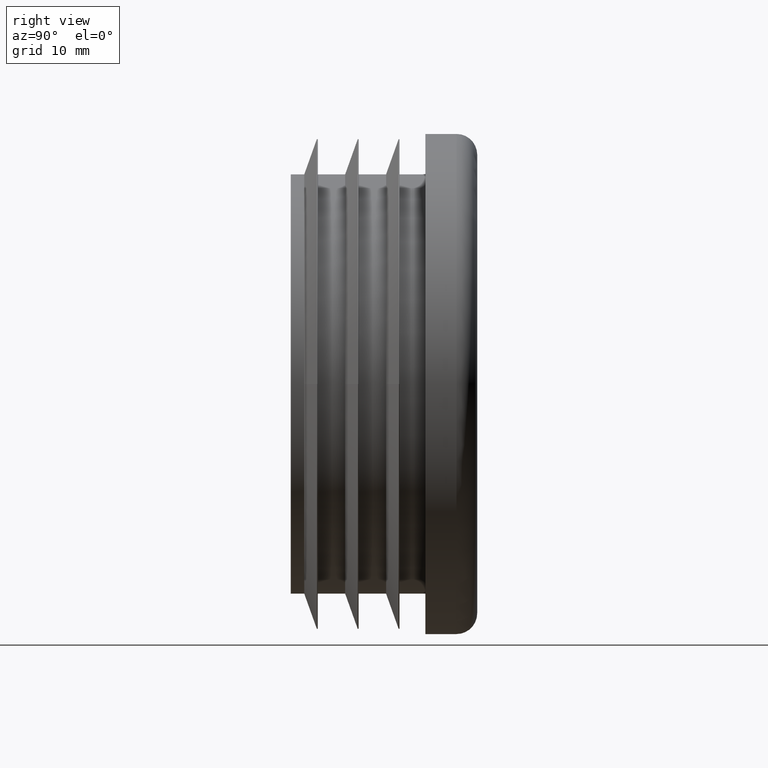
[diagram: clean part render]
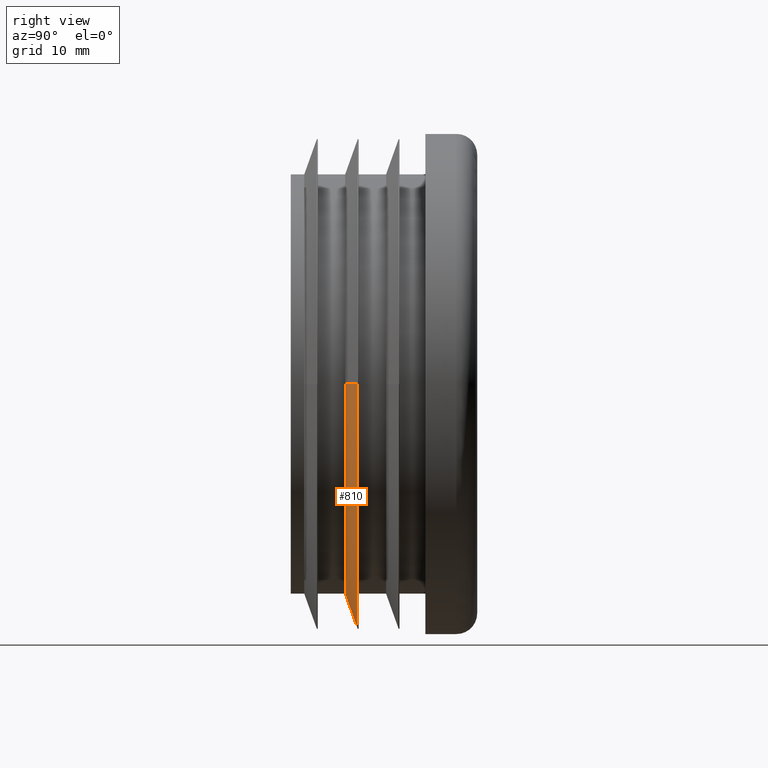
[diagram: same view with one face highlighted and labeled with its STEP entity id]
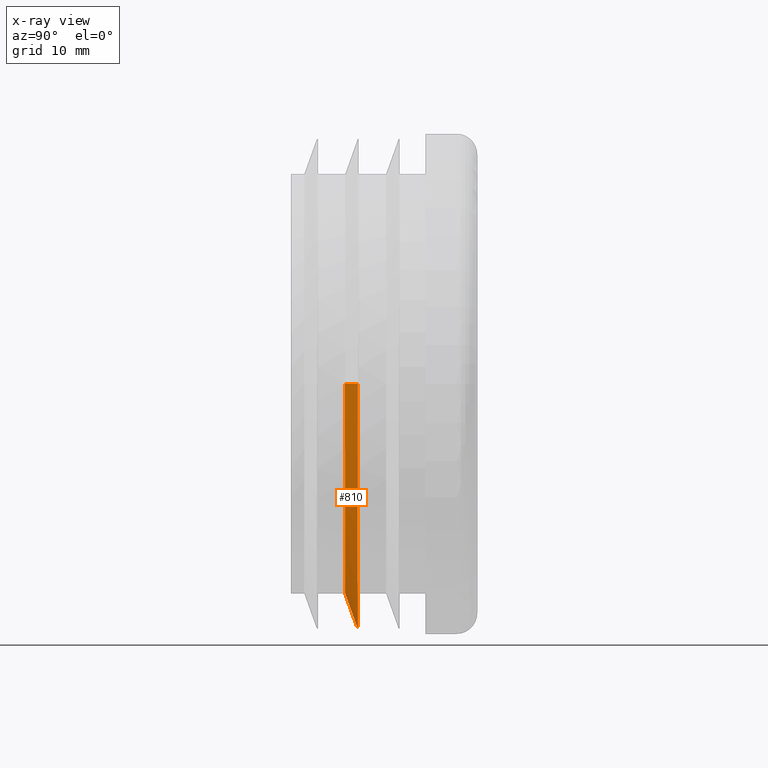
[diagram: x-ray of the same camera — body ghosted, the highlighted face saturated]
A machine part, right view. The second image highlights one B-rep face of the part: STEP entity #810.
The next image is the same camera in x-ray: the body ghosted, the highlighted face saturated — about 0% of this face is hidden behind the body in this view.
In plain terms, the highlighted conical surface has half-angle 70.339 deg.
Its self-contained STEP definition (entity closure, byte-faithful):
#339 = AXIS2_PLACEMENT_3D ( 'NONE', #545, #4333, #6259 ) ;
#545 = CARTESIAN_POINT ( 'NONE',  ( -5.499083108677953652E-14, 5.250000000000017764, 0.000000000000000000 ) ) ;
#696 = EDGE_CURVE ( 'NONE', #11038, #10031, #1100, .T. ) ;
#810 = ADVANCED_FACE ( 'NONE', ( #7838 ), #5240, .T. ) ;
#1100 = CIRCLE ( 'NONE', #8448, 20.25000000000000355 ) ;
#1344 = CARTESIAN_POINT ( 'NONE',  ( 20.25000000000004619, 5.250000000000230038, 2.479909768273402527E-15 ) ) ;
#1398 = DIRECTION ( 'NONE',  ( -1.000000000000000000, -1.049400621269920216E-14, 0.000000000000000000 ) ) ;
#1443 = DIRECTION ( 'NONE',  ( -1.000000000000000000, -1.049400621269920216E-14, 0.000000000000000000 ) ) ;
#1680 = EDGE_LOOP ( 'NONE', ( #3660, #7064, #10396, #7664, #5326 ) ) ;
#2036 = CARTESIAN_POINT ( 'NONE',  ( 23.61682275238635498, 6.452915023604935740, 2.892226638974041305E-15 ) ) ;
#2047 = EDGE_CURVE ( 'NONE', #7469, #7167, #4298, .T. ) ;
#2293 = LINE ( 'NONE', #6344, #8103 ) ;
#2504 = CARTESIAN_POINT ( 'NONE',  ( -23.61682275238649353, 6.452915023604441025, 0.000000000000000000 ) ) ;
#3578 = EDGE_CURVE ( 'NONE', #9100, #7469, #2293, .T. ) ;
#3660 = ORIENTED_EDGE ( 'NONE', *, *, #7374, .F. ) ;
#3912 = CARTESIAN_POINT ( 'NONE',  ( 20.24999999999995026, 5.250000000000195399, 2.686068203623716789E-15 ) ) ;
#4194 = CARTESIAN_POINT ( 'NONE',  ( -5.499083108677917680E-14, 5.249999999999983125, 0.000000000000000000 ) ) ;
#4243 = DIRECTION ( 'NONE',  ( -0.9416995279065806246, 0.3364550477263241746, 0.000000000000000000 ) ) ;
#4298 = CIRCLE ( 'NONE', #7048, 23.61682275238642248 ) ;
#4333 = DIRECTION ( 'NONE',  ( -1.047444401652940007E-14, 1.000000000000000000, 0.000000000000000000 ) ) ;
#5169 = DIRECTION ( 'NONE',  ( 1.047444401652940007E-14, -1.000000000000000000, -0.000000000000000000 ) ) ;
#5201 = DIRECTION ( 'NONE',  ( -1.047444401652940007E-14, 1.000000000000000000, 0.000000000000000000 ) ) ;
#5240 = CONICAL_SURFACE ( 'NONE', #339, 20.25000000000009948, 1.227646392833292577 ) ;
#5326 = ORIENTED_EDGE ( 'NONE', *, *, #2047, .T. ) ;
#6259 = DIRECTION ( 'NONE',  ( -1.000000000000000000, -1.049400621269915168E-14, 0.000000000000000000 ) ) ;
#6295 = CARTESIAN_POINT ( 'NONE',  ( -2.224834271756134857E-27, 5.249999999999983125, -20.25000000000000355 ) ) ;
#6344 = CARTESIAN_POINT ( 'NONE',  ( -20.25000000000015632, 5.249999999999805489, 0.000000000000000000 ) ) ;
#6812 = VECTOR ( 'NONE', #7288, 1000.000000000000000 ) ;
#7048 = AXIS2_PLACEMENT_3D ( 'NONE', #11018, #5169, #7140 ) ;
#7064 = ORIENTED_EDGE ( 'NONE', *, *, #696, .T. ) ;
#7140 = DIRECTION ( 'NONE',  ( 1.000000000000000000, 1.046703436437978337E-14, 0.000000000000000000 ) ) ;
#7167 = VERTEX_POINT ( 'NONE', #2036 ) ;
#7288 = DIRECTION ( 'NONE',  ( 0.9416995279065736302, 0.3364550477263439920, 1.153249312609363416E-16 ) ) ;
#7341 = CARTESIAN_POINT ( 'NONE',  ( -5.499083108677917680E-14, 5.249999999999983125, 0.000000000000000000 ) ) ;
#7374 = EDGE_CURVE ( 'NONE', #11038, #7167, #11262, .T. ) ;
#7469 = VERTEX_POINT ( 'NONE', #2504 ) ;
#7664 = ORIENTED_EDGE ( 'NONE', *, *, #3578, .T. ) ;
#7838 = FACE_OUTER_BOUND ( 'NONE', #1680, .T. ) ;
#8103 = VECTOR ( 'NONE', #4243, 1000.000000000000114 ) ;
#8178 = CARTESIAN_POINT ( 'NONE',  ( -20.25000000000006040, 5.249999999999770850, 0.000000000000000000 ) ) ;
#8244 = DIRECTION ( 'NONE',  ( -1.047444401652940007E-14, 1.000000000000000000, 0.000000000000000000 ) ) ;
#8389 = CIRCLE ( 'NONE', #9870, 20.25000000000000355 ) ;
#8448 = AXIS2_PLACEMENT_3D ( 'NONE', #7341, #8244, #1443 ) ;
#9100 = VERTEX_POINT ( 'NONE', #8178 ) ;
#9870 = AXIS2_PLACEMENT_3D ( 'NONE', #4194, #5201, #1398 ) ;
#10031 = VERTEX_POINT ( 'NONE', #6295 ) ;
#10396 = ORIENTED_EDGE ( 'NONE', *, *, #10499, .T. ) ;
#10499 = EDGE_CURVE ( 'NONE', #10031, #9100, #8389, .T. ) ;
#11018 = CARTESIAN_POINT ( 'NONE',  ( -6.759069715816879481E-14, 6.452915023604688827, 0.000000000000000000 ) ) ;
#11038 = VERTEX_POINT ( 'NONE', #3912 ) ;
#11262 = LINE ( 'NONE', #1344, #6812 ) ;